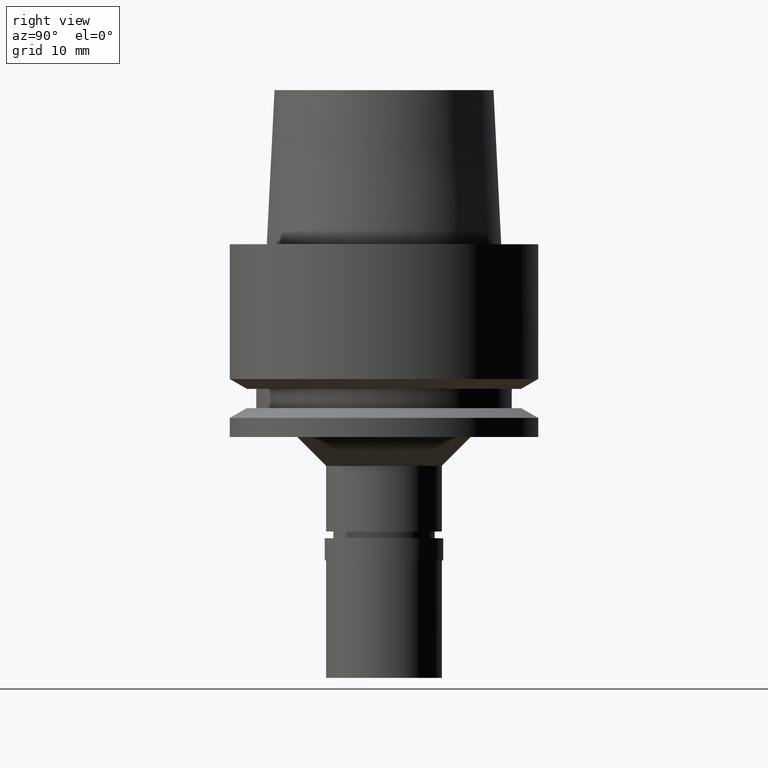
[diagram: clean part render]
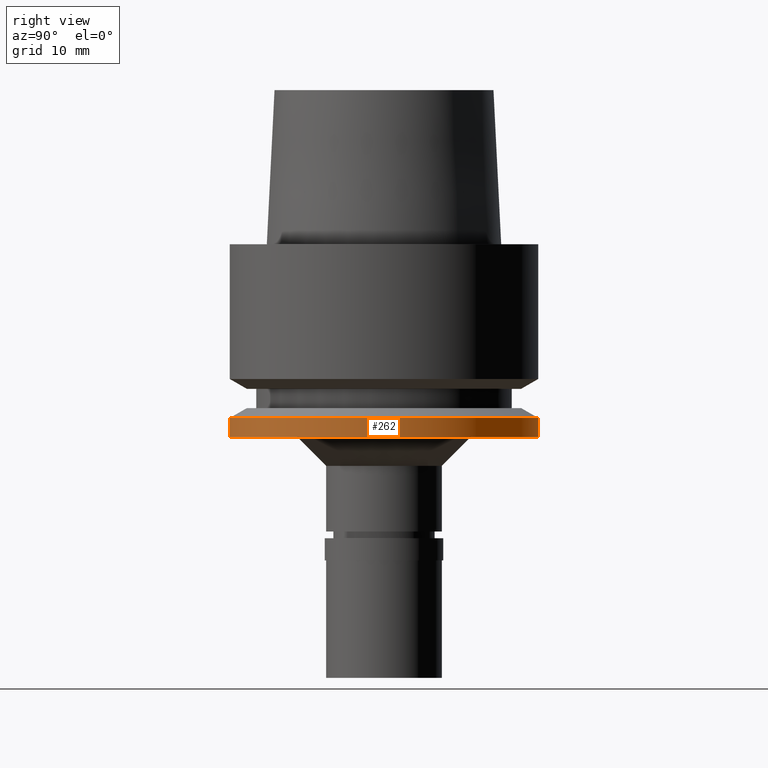
[diagram: same view with one face highlighted and labeled with its STEP entity id]
A machine part, right view. The second image highlights one B-rep face of the part: STEP entity #262.
In plain terms, the highlighted cylindrical surface (partial cylindrical patch) has radius 16 mm, axis along (0, 0, 1).
Its self-contained STEP definition (entity closure, byte-faithful):
#123 = AXIS2_PLACEMENT_3D ( 'NONE', #2400, #2367, #750 ) ;
#135 = EDGE_CURVE ( 'NONE', #499, #1192, #1041, .T. ) ;
#262 = ADVANCED_FACE ( 'NONE', ( #2028 ), #581, .T. ) ;
#335 = VERTEX_POINT ( 'NONE', #1411 ) ;
#352 = CARTESIAN_POINT ( 'NONE',  ( 0.0000000000000000000, 0.0000000000000000000, -43.85000000000000142 ) ) ;
#465 = ORIENTED_EDGE ( 'NONE', *, *, #710, .T. ) ;
#475 = CARTESIAN_POINT ( 'NONE',  ( 0.0000000000000000000, 0.0000000000000000000, -20.00000000000000000 ) ) ;
#477 = AXIS2_PLACEMENT_3D ( 'NONE', #352, #2253, #2660 ) ;
#499 = VERTEX_POINT ( 'NONE', #1496 ) ;
#560 = CIRCLE ( 'NONE', #123, 16.00000000000000000 ) ;
#571 = CARTESIAN_POINT ( 'NONE',  ( 0.0000000000000000000, -16.00000000000000000, -18.02072594216000212 ) ) ;
#581 = CYLINDRICAL_SURFACE ( 'NONE', #477, 16.00000000000000000 ) ;
#610 = ORIENTED_EDGE ( 'NONE', *, *, #2206, .F. ) ;
#663 = EDGE_CURVE ( 'NONE', #2228, #499, #560, .T. ) ;
#695 = EDGE_LOOP ( 'NONE', ( #1478, #861, #465, #610 ) ) ;
#710 = EDGE_CURVE ( 'NONE', #1192, #335, #1661, .T. ) ;
#724 = DIRECTION ( 'NONE',  ( 0.0000000000000000000, 4.783562901008000077E-13, -1.000000000000000000 ) ) ;
#750 = DIRECTION ( 'NONE',  ( 0.0000000000000000000, 1.000000000000000000, 0.0000000000000000000 ) ) ;
#861 = ORIENTED_EDGE ( 'NONE', *, *, #135, .T. ) ;
#1041 = LINE ( 'NONE', #571, #1837 ) ;
#1192 = VERTEX_POINT ( 'NONE', #2409 ) ;
#1320 = DIRECTION ( 'NONE',  ( 0.0000000000000000000, -1.000000000000000000, 0.0000000000000000000 ) ) ;
#1334 = CARTESIAN_POINT ( 'NONE',  ( 0.0000000000000000000, 16.00000000000000000, -18.02072594216000212 ) ) ;
#1411 = CARTESIAN_POINT ( 'NONE',  ( 0.0000000000000000000, 16.00000000000000000, -20.00000000000000000 ) ) ;
#1478 = ORIENTED_EDGE ( 'NONE', *, *, #663, .T. ) ;
#1496 = CARTESIAN_POINT ( 'NONE',  ( 0.0000000000000000000, -16.00000000000000000, -18.02072594216000212 ) ) ;
#1661 = CIRCLE ( 'NONE', #2615, 16.00000000000000000 ) ;
#1837 = VECTOR ( 'NONE', #2126, 1000.000000000000000 ) ;
#1918 = VECTOR ( 'NONE', #724, 1000.000000000000000 ) ;
#2028 = FACE_OUTER_BOUND ( 'NONE', #695, .T. ) ;
#2126 = DIRECTION ( 'NONE',  ( 0.0000000000000000000, -4.783562901008000077E-13, -1.000000000000000000 ) ) ;
#2174 = DIRECTION ( 'NONE',  ( 0.0000000000000000000, 0.0000000000000000000, 1.000000000000000000 ) ) ;
#2206 = EDGE_CURVE ( 'NONE', #2228, #335, #2591, .T. ) ;
#2228 = VERTEX_POINT ( 'NONE', #2580 ) ;
#2253 = DIRECTION ( 'NONE',  ( 0.0000000000000000000, 0.0000000000000000000, 1.000000000000000000 ) ) ;
#2367 = DIRECTION ( 'NONE',  ( 0.0000000000000000000, 0.0000000000000000000, -1.000000000000000000 ) ) ;
#2400 = CARTESIAN_POINT ( 'NONE',  ( 0.0000000000000000000, 0.0000000000000000000, -18.02072594216000212 ) ) ;
#2409 = CARTESIAN_POINT ( 'NONE',  ( 0.0000000000000000000, -16.00000000000000000, -20.00000000000000000 ) ) ;
#2580 = CARTESIAN_POINT ( 'NONE',  ( 0.0000000000000000000, 16.00000000000000000, -18.02072594216000212 ) ) ;
#2591 = LINE ( 'NONE', #1334, #1918 ) ;
#2615 = AXIS2_PLACEMENT_3D ( 'NONE', #475, #2174, #1320 ) ;
#2660 = DIRECTION ( 'NONE',  ( 0.0000000000000000000, 1.000000000000000000, 0.0000000000000000000 ) ) ;